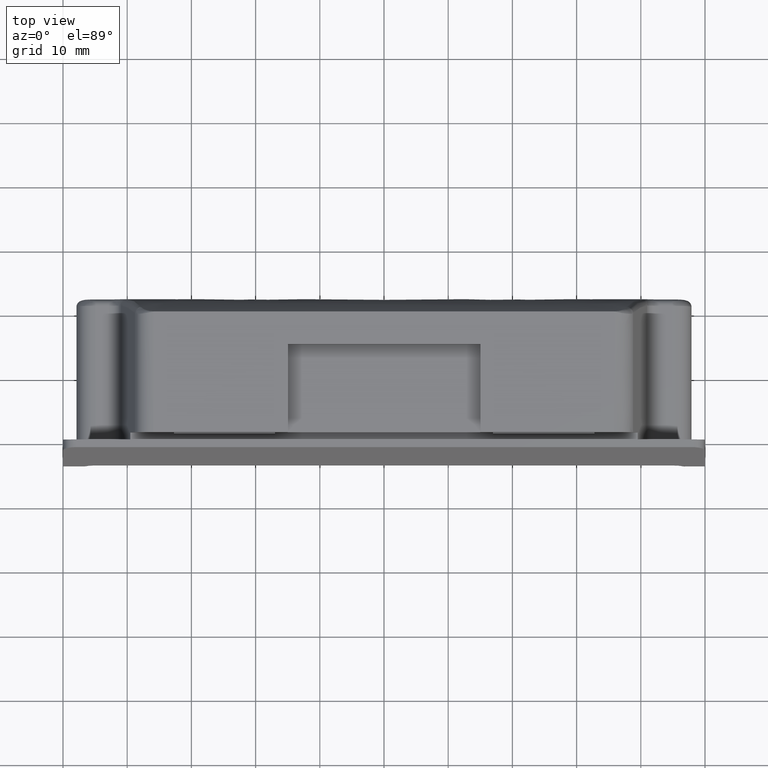
[diagram: clean part render]
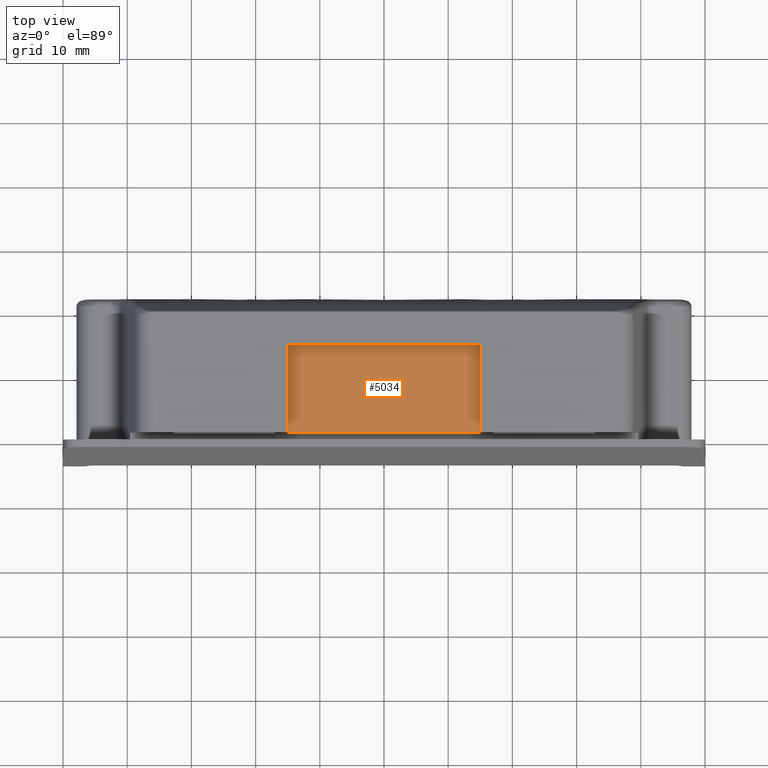
[diagram: same view with one face highlighted and labeled with its STEP entity id]
A machine part, top view. The second image highlights one B-rep face of the part: STEP entity #5034.
In plain terms, the highlighted face is a freeform B-spline surface patch.
Its self-contained STEP definition (entity closure, byte-faithful):
#4963=CARTESIAN_POINT('',(-15.0,14.800000000000001,22.149999999999999));
#4964=VERTEX_POINT('',#4963);
#4970=CARTESIAN_POINT('',(15.0,14.800000000000001,22.149999999999999));
#4971=VERTEX_POINT('',#4970);
#4972=CARTESIAN_POINT('',(-15.0,14.800000000000001,22.149999999999999));
#4973=CARTESIAN_POINT('',(15.0,14.800000000000001,22.149999999999999));
#4974=QUASI_UNIFORM_CURVE('',1,(#4972,#4973),.UNSPECIFIED.,.F.,.U.);
#4975=EDGE_CURVE('',#4964,#4971,#4974,.T.);
#4998=CARTESIAN_POINT('',(15.0,1.100000000000000,22.149999999999999));
#4999=VERTEX_POINT('',#4998);
#5000=CARTESIAN_POINT('',(15.0,14.800000000000001,22.149999999999999));
#5001=CARTESIAN_POINT('',(15.0,1.100000000000000,22.149999999999999));
#5002=QUASI_UNIFORM_CURVE('',1,(#5000,#5001),.UNSPECIFIED.,.F.,.U.);
#5003=EDGE_CURVE('',#4971,#4999,#5002,.T.);
#5013=CARTESIAN_POINT('',(16.498499941854181,0.415685026553260,22.149999999999999));
#5014=CARTESIAN_POINT('',(-16.498500746516889,0.415685026553260,22.149999999999999));
#5015=CARTESIAN_POINT('',(16.498499941854181,15.484315340909379,22.149999999999999));
#5016=CARTESIAN_POINT('',(-16.498500746516889,15.484315340909379,22.149999999999999));
#5017=B_SPLINE_SURFACE_WITH_KNOTS('',1,1,((#5013,#5015),(#5014,#5016)),.UNSPECIFIED.,.F.,.F.,.U.,(2,2),(2,2),(0.0,32.997000688371060),(0.0,15.068630314356120),.UNSPECIFIED.);
#5018=ORIENTED_EDGE('',*,*,#5003,.F.);
#5019=ORIENTED_EDGE('',*,*,#4975,.F.);
#5020=CARTESIAN_POINT('',(-15.0,1.100000000000000,22.149999999999999));
#5021=VERTEX_POINT('',#5020);
#5022=CARTESIAN_POINT('',(-15.0,14.800000000000001,22.149999999999999));
#5023=CARTESIAN_POINT('',(-15.0,1.100000000000000,22.149999999999999));
#5024=QUASI_UNIFORM_CURVE('',1,(#5022,#5023),.UNSPECIFIED.,.F.,.U.);
#5025=EDGE_CURVE('',#4964,#5021,#5024,.T.);
#5026=ORIENTED_EDGE('',*,*,#5025,.T.);
#5027=CARTESIAN_POINT('',(15.0,1.100000000000000,22.149999999999999));
#5028=CARTESIAN_POINT('',(-15.0,1.100000000000000,22.149999999999999));
#5029=QUASI_UNIFORM_CURVE('',1,(#5027,#5028),.UNSPECIFIED.,.F.,.U.);
#5030=EDGE_CURVE('',#4999,#5021,#5029,.T.);
#5031=ORIENTED_EDGE('',*,*,#5030,.F.);
#5032=EDGE_LOOP('',(#5018,#5019,#5026,#5031));
#5033=FACE_OUTER_BOUND('',#5032,.T.);
#5034=ADVANCED_FACE('',(#5033),#5017,.F.);